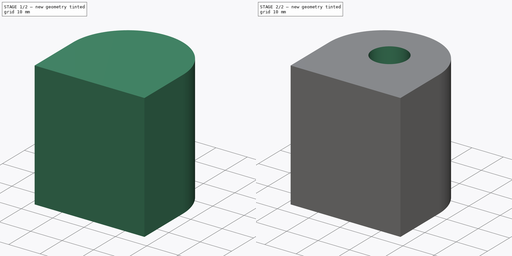
[diagram: build sequence overview — one tinted view per stage of 2, left to right]
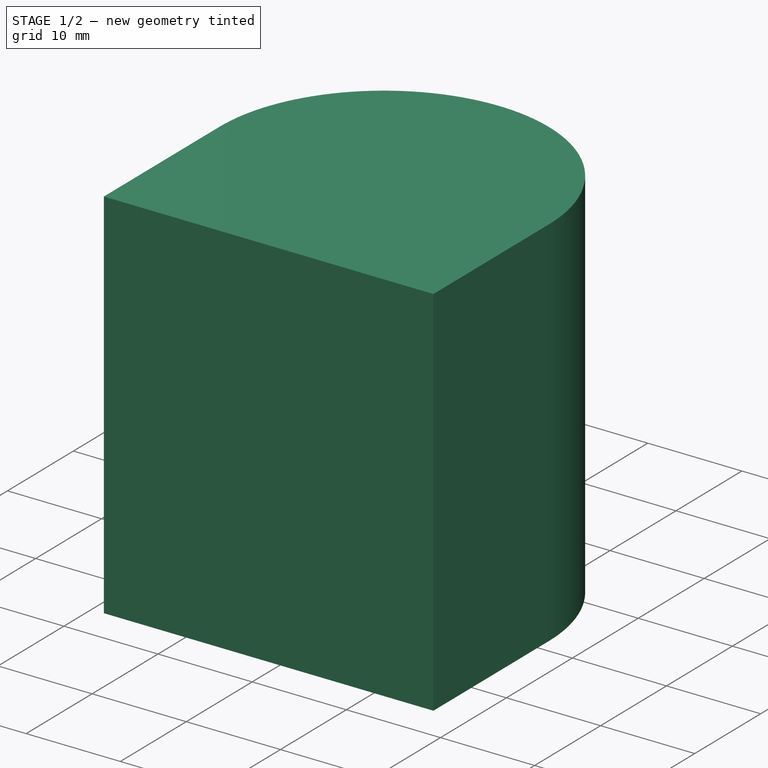
[diagram: stage 1 of 2 — iso view after this stage's code; geometry added in this stage tinted green]
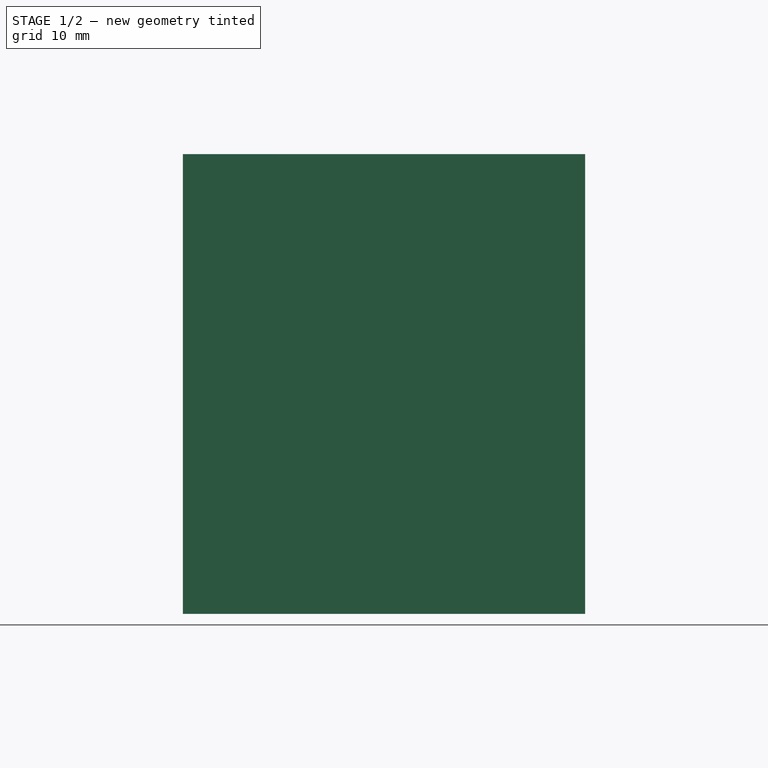
[diagram: stage 1 of 2 — front view after this stage's code; geometry added in this stage tinted green]
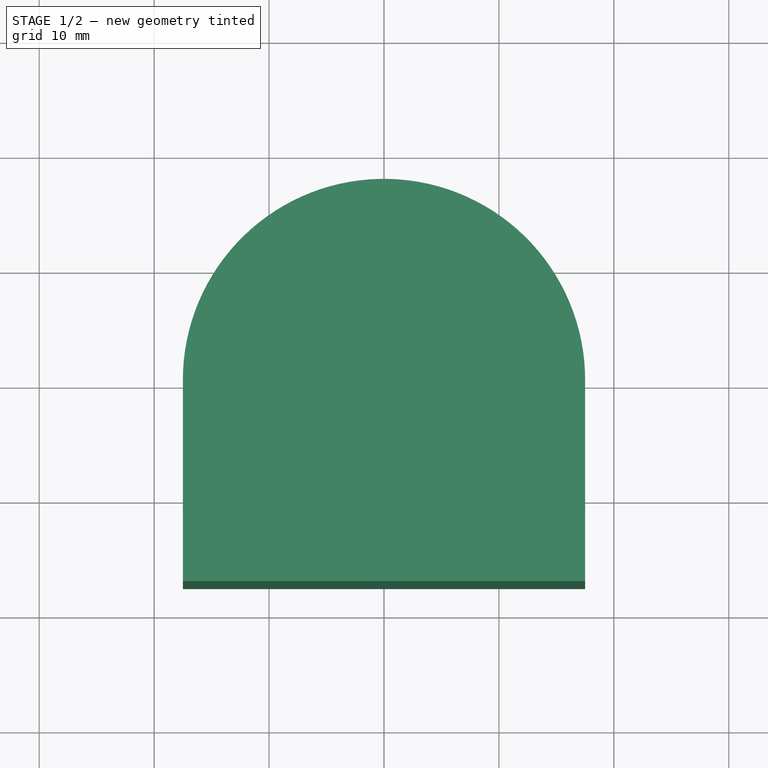
[diagram: stage 1 of 2 — top view after this stage's code; geometry added in this stage tinted green]
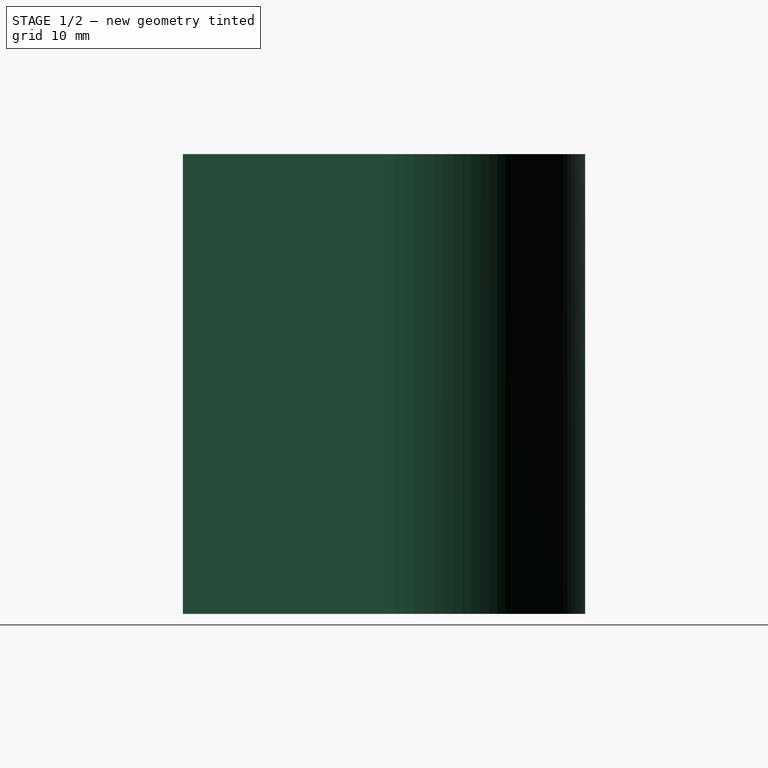
[diagram: stage 1 of 2 — right view after this stage's code; geometry added in this stage tinted green]
FCSTD DOCUMENT  (FreeCAD 0.18R4 (GitTag))
Label: ID-004-00-MRS
License: All rights reserved
LicenseURL: http://en.wikipedia.org/wiki/All_rights_reserved
objects: Sketcher::SketchObject×2, PartDesign::Pad×1, PartDesign::Hole×1, PartDesign::Body×1
note: 7 computed .brp shape members not serialized (recipe doc carries the construction recipe); baked Part::Feature solids carry a one-line shape summary decoded from their .brp

FEATURE [Sketcher::SketchObject] Sketch
  MapMode = 5
  Support = -> [XY_Plane]
  sketch-geometry (4):
    g0: LineSegment StartX=-17.5 StartY=2.1e-15 StartZ=0 EndX=-17.5 EndY=-17.5 EndZ=0
    g1: LineSegment StartX=-17.5 StartY=-17.5 StartZ=0 EndX=17.5 EndY=-17.5 EndZ=0
    g2: LineSegment StartX=17.5 StartY=-17.5 StartZ=0 EndX=17.5 EndY=0 EndZ=0
    g3: ArcOfCircle CenterX=0 CenterY=0 CenterZ=0 NormalX=0 NormalY=0 NormalZ=1 AngleXU=0 Radius=17.5 StartAngle=0 EndAngle=3.14159
  constraints (12):
    c: Coincident(g0,g1)
    c: Coincident(g1,g2)
    c: Horizontal(g1)
    c: Vertical(g2)
    c: Vertical(g0)
    c: Equal(g0,g2)
    c: Coincident(g0,g3)
    c: Coincident(g2,g3)
    c: Horizontal(g3,g2)
    c: Radius(g3) = 17.5
    c: Coincident(g3,g-1)
    c: DistanceY(g2,g2) = 17.5
FEATURE [PartDesign::Pad] Pad
  Length = 40
  Length2 = 100
  Profile = -> Sketch
  Type = 0
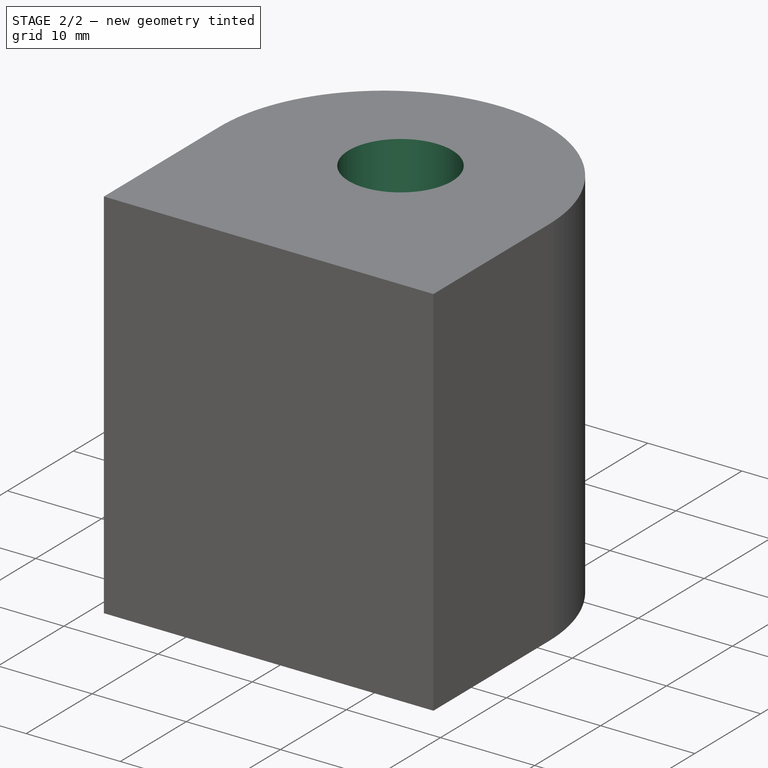
[diagram: stage 2 of 2 — iso view after this stage's code; geometry added in this stage tinted green]
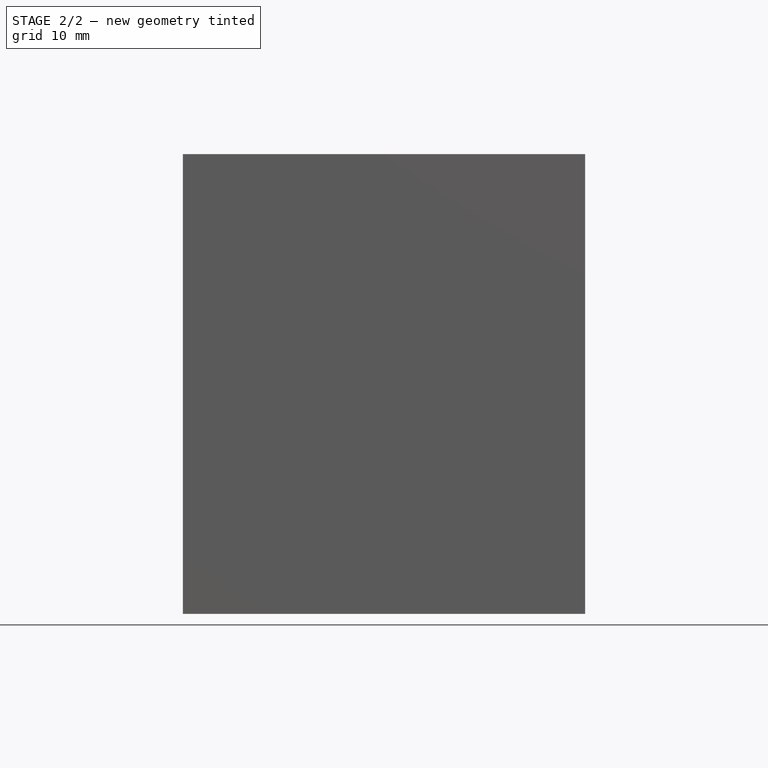
[diagram: stage 2 of 2 — front view after this stage's code; geometry added in this stage tinted green]
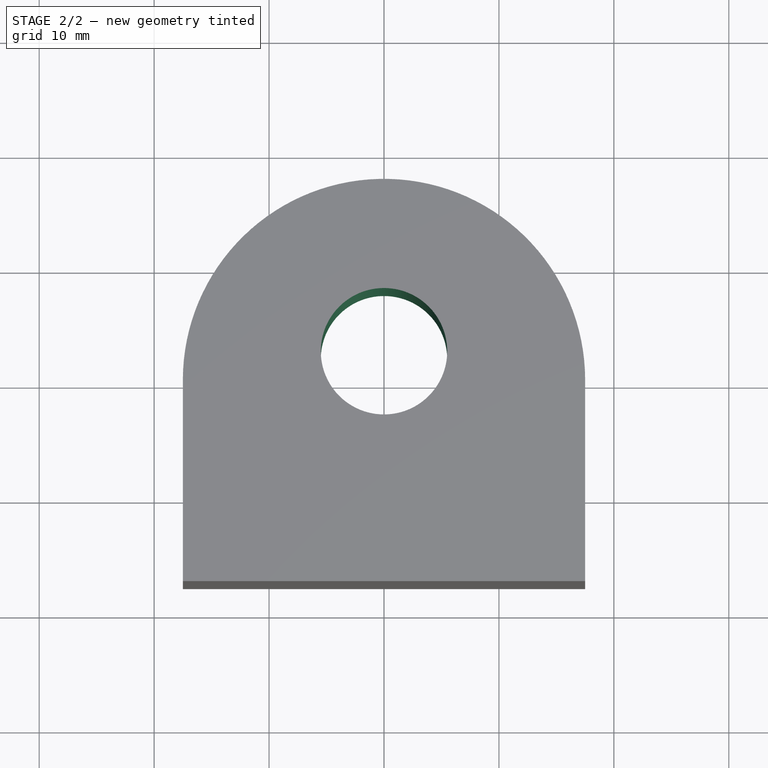
[diagram: stage 2 of 2 — top view after this stage's code; geometry added in this stage tinted green]
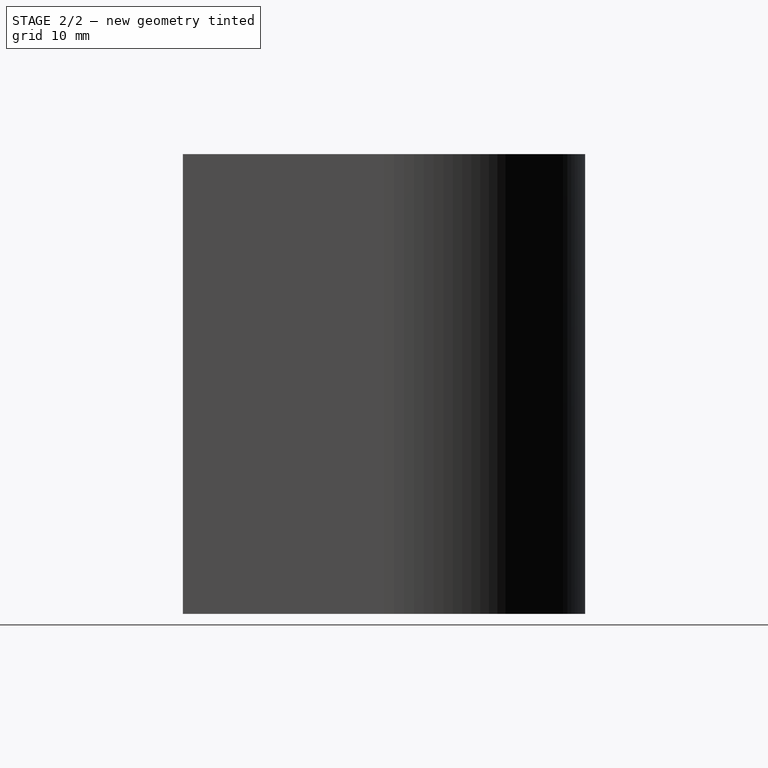
[diagram: stage 2 of 2 — right view after this stage's code; geometry added in this stage tinted green]
FEATURE [Sketcher::SketchObject] Sketch001
  MapMode = 5
  Placement = pos=(0,0,40) rot=(0,0,1;0rad)
  Support = -> [Pad]
  sketch-geometry (1):
    g0: Circle CenterX=0 CenterY=2.5 CenterZ=0 NormalX=0 NormalY=0 NormalZ=1 AngleXU=0 Radius=6
  constraints (3):
    c: Radius(g0) = 6
    c: PointOnObject(g0,g-2)
    c: DistanceY(g-1,g0) = 2.5
FEATURE [PartDesign::Hole] Hole
  BaseFeature = -> Pad
  Depth = 25
  DepthType = 1
  Diameter = 11
  DrillPoint = 1
  DrillPointAngle = 118
  HoleCutCountersinkAngle = 90
  HoleCutDepth = 0
  HoleCutDiameter = 12
  HoleCutType = 0
  ModelActualThread = false
  Profile = -> Sketch001
  Tapered = false
  TaperedAngle = 90
  ThreadAngle = 60
  ThreadClass = 0
  ThreadCutOffInner = 0.108253
  ThreadCutOffOuter = 0.216506
  ThreadDirection = 1
  ThreadFit = 0
  ThreadPitch = 1
  ThreadSize = 26
  ThreadType = 2
  Threaded = true
FEATURE [PartDesign::Body] Body
  Group = -> [Sketch,Pad,Sketch001,Hole]
  Origin = -> Origin
  Tip = -> Hole
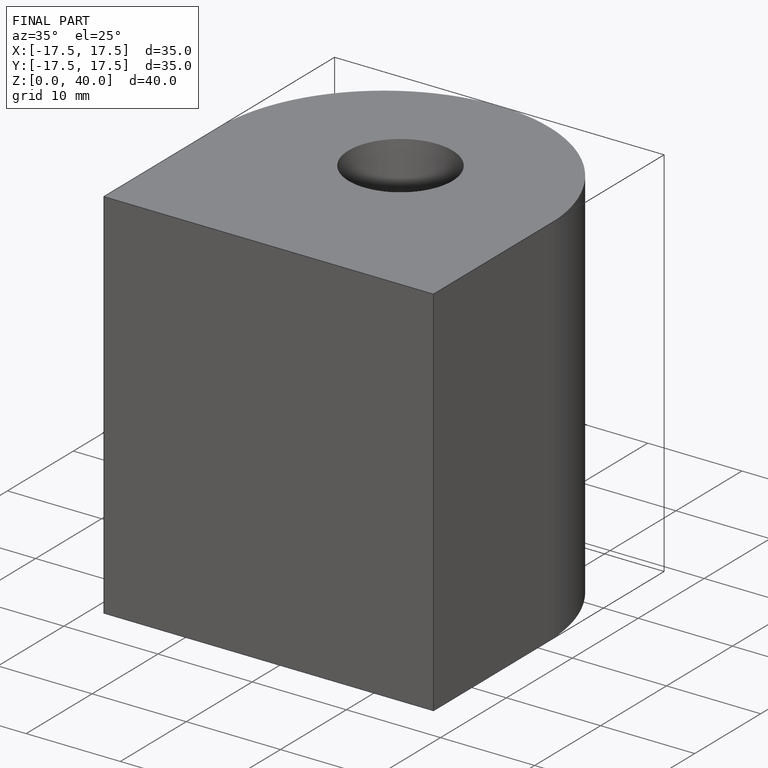
[diagram: finished part — iso view with bounding-box wireframe]
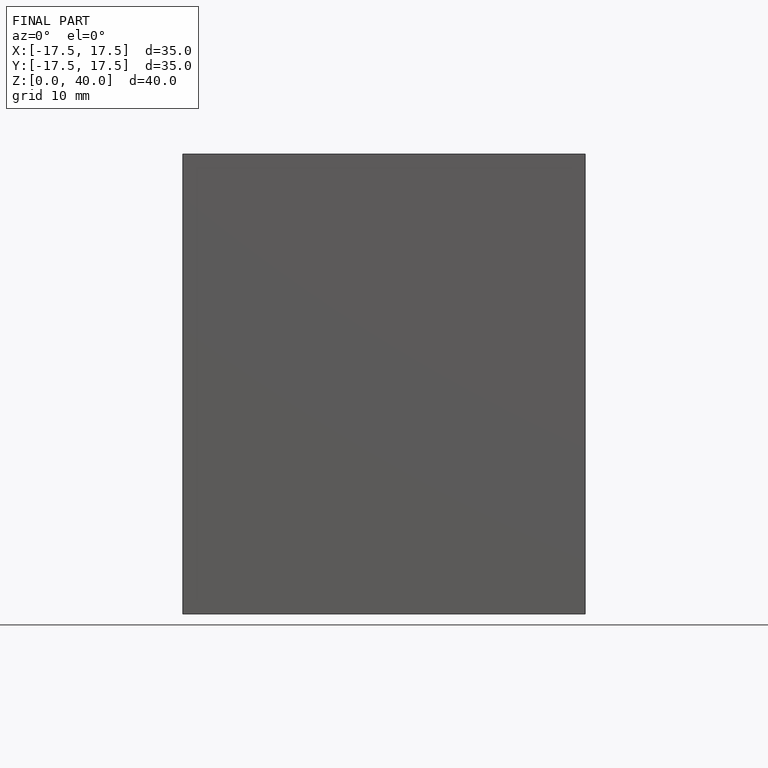
[diagram: finished part — front view with bounding-box wireframe]
